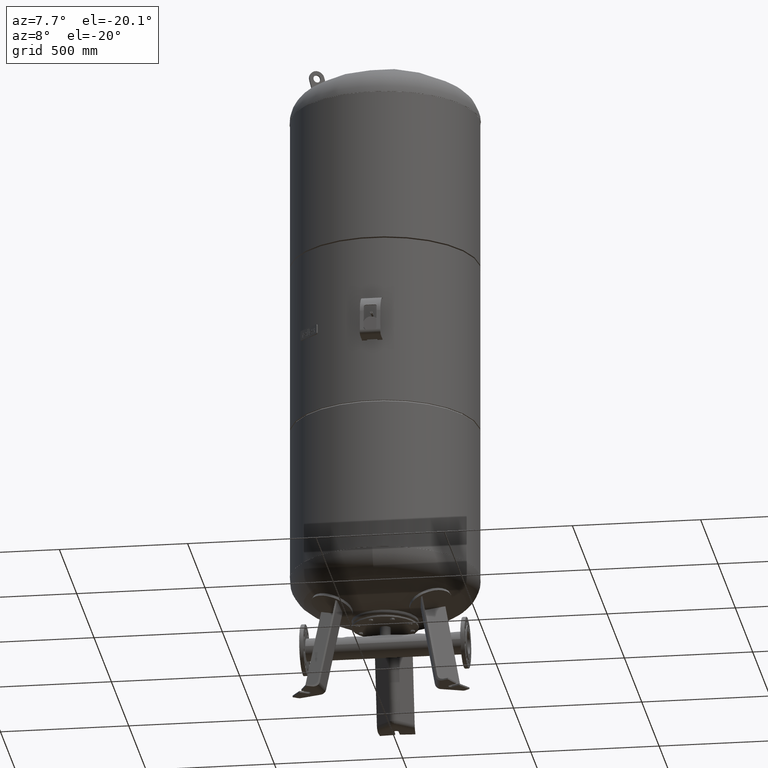
[diagram: clean part render]
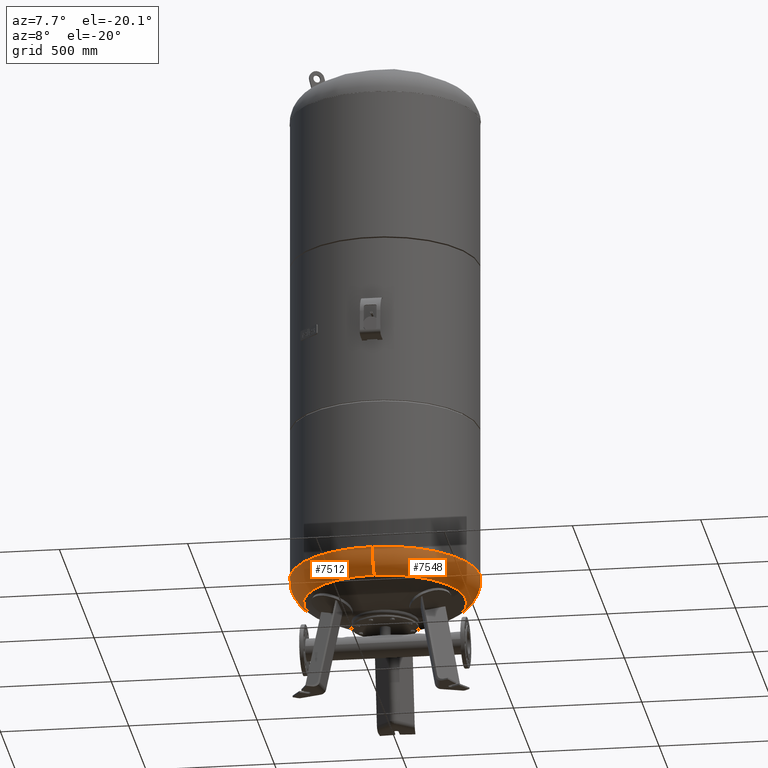
[diagram: same view with one multi-face feature highlighted, each face labeled with its STEP entity id]
A machine part, auxiliary view. The highlighted faces form ONE feature: a constant-radius fillet chain: 2 tangent blend faces with common blend radius 115.5 mm. The faces share edges in the B-rep.
Their STEP definitions:
[1] entity #7512 (Torus):
#7417=CARTESIAN_POINT('',(-370.0,-3.468087E-014,511.793879611869560));
#7418=VERTEX_POINT('',#7417);
#7442=CARTESIAN_POINT('',(-4.531044E-014,369.999999999999940,511.793879611869610));
#7443=VERTEX_POINT('',#7442);
#7451=CARTESIAN_POINT('',(0.0,-3.468087E-014,511.793879611869560));
#7452=DIRECTION('',(0.0,0.0,1.0));
#7453=DIRECTION('',(-1.0,0.0,0.0));
#7454=AXIS2_PLACEMENT_3D('',#7451,#7452,#7453);
#7455=CIRCLE('',#7454,370.0);
#7456=EDGE_CURVE('',#7443,#7418,#7455,.T.);
#7461=CARTESIAN_POINT('',(0.0,-3.468087E-014,511.793879611869560));
#7462=DIRECTION('',(0.0,-1.836970E-016,1.0));
#7463=DIRECTION('',(0.0,-1.0,0.0));
#7464=AXIS2_PLACEMENT_3D('',#7461,#7462,#7463);
#7465=TOROIDAL_SURFACE('',#7464,254.500000000000030,115.500000000000000);
#7466=CARTESIAN_POINT('',(0.0,-370.000000000000060,511.793879611869500));
#7467=VERTEX_POINT('',#7466);
#7468=CARTESIAN_POINT('',(0.0,-315.931034482758610,413.985505725079410));
#7469=VERTEX_POINT('',#7468);
#7470=CARTESIAN_POINT('',(0.0,-254.500000000000060,511.793879611869500));
#7471=DIRECTION('',(1.0,0.0,0.0));
#7472=DIRECTION('',(0.0,-1.0,0.0));
#7473=AXIS2_PLACEMENT_3D('',#7470,#7471,#7472);
#7474=CIRCLE('',#7473,115.500000000000000);
#7475=EDGE_CURVE('',#7467,#7469,#7474,.T.);
#7476=ORIENTED_EDGE('',*,*,#7475,.F.);
#7477=CARTESIAN_POINT('',(0.0,-3.468087E-014,511.793879611869560));
#7478=DIRECTION('',(0.0,0.0,1.0));
#7479=DIRECTION('',(-1.0,0.0,0.0));
#7480=AXIS2_PLACEMENT_3D('',#7477,#7478,#7479);
#7481=CIRCLE('',#7480,370.0);
#7482=EDGE_CURVE('',#7418,#7467,#7481,.T.);
#7483=ORIENTED_EDGE('',*,*,#7482,.F.);
#7484=ORIENTED_EDGE('',*,*,#7456,.F.);
#7485=CARTESIAN_POINT('',(-3.868912E-014,315.931034482758610,413.985505725079630));
#7486=VERTEX_POINT('',#7485);
#7487=CARTESIAN_POINT('',(-3.116623E-014,254.500000000000000,511.793879611869610));
#7488=DIRECTION('',(-1.0,0.0,0.0));
#7489=DIRECTION('',(0.0,1.0,0.0));
#7490=AXIS2_PLACEMENT_3D('',#7487,#7488,#7489);
#7491=CIRCLE('',#7490,115.500000000000000);
#7492=EDGE_CURVE('',#7443,#7486,#7491,.T.);
#7493=ORIENTED_EDGE('',*,*,#7492,.T.);
#7494=CARTESIAN_POINT('',(-315.931034482758610,-1.671377E-014,413.985505725079520));
#7495=VERTEX_POINT('',#7494);
#7496=CARTESIAN_POINT('',(0.0,-1.671377E-014,413.985505725079520));
#7497=DIRECTION('',(0.0,0.0,1.0));
#7498=DIRECTION('',(-1.0,0.0,0.0));
#7499=AXIS2_PLACEMENT_3D('',#7496,#7497,#7498);
#7500=CIRCLE('',#7499,315.931034482758610);
#7501=EDGE_CURVE('',#7486,#7495,#7500,.T.);
#7502=ORIENTED_EDGE('',*,*,#7501,.T.);
#7503=CARTESIAN_POINT('',(0.0,-1.671377E-014,413.985505725079520));
#7504=DIRECTION('',(0.0,0.0,1.0));
#7505=DIRECTION('',(-1.0,0.0,0.0));
#7506=AXIS2_PLACEMENT_3D('',#7503,#7504,#7505);
#7507=CIRCLE('',#7506,315.931034482758610);
#7508=EDGE_CURVE('',#7495,#7469,#7507,.T.);
#7509=ORIENTED_EDGE('',*,*,#7508,.T.);
#7510=EDGE_LOOP('',(#7476,#7483,#7484,#7493,#7502,#7509));
#7511=FACE_OUTER_BOUND('',#7510,.T.);
#7512=ADVANCED_FACE('',(#7511),#7465,.T.);
[2] entity #7548 (Torus):
#7434=CARTESIAN_POINT('',(370.0,1.062956E-014,511.793879611869560));
#7435=VERTEX_POINT('',#7434);
#7442=CARTESIAN_POINT('',(-4.531044E-014,369.999999999999940,511.793879611869610));
#7443=VERTEX_POINT('',#7442);
#7444=CARTESIAN_POINT('',(0.0,-3.468087E-014,511.793879611869560));
#7445=DIRECTION('',(0.0,0.0,1.0));
#7446=DIRECTION('',(-1.0,0.0,0.0));
#7447=AXIS2_PLACEMENT_3D('',#7444,#7445,#7446);
#7448=CIRCLE('',#7447,370.0);
#7449=EDGE_CURVE('',#7435,#7443,#7448,.T.);
#7466=CARTESIAN_POINT('',(0.0,-370.000000000000060,511.793879611869500));
#7467=VERTEX_POINT('',#7466);
#7468=CARTESIAN_POINT('',(0.0,-315.931034482758610,413.985505725079410));
#7469=VERTEX_POINT('',#7468);
#7470=CARTESIAN_POINT('',(0.0,-254.500000000000060,511.793879611869500));
#7471=DIRECTION('',(1.0,0.0,0.0));
#7472=DIRECTION('',(0.0,-1.0,0.0));
#7473=AXIS2_PLACEMENT_3D('',#7470,#7471,#7472);
#7474=CIRCLE('',#7473,115.500000000000000);
#7475=EDGE_CURVE('',#7467,#7469,#7474,.T.);
#7485=CARTESIAN_POINT('',(-3.868912E-014,315.931034482758610,413.985505725079630));
#7486=VERTEX_POINT('',#7485);
#7487=CARTESIAN_POINT('',(-3.116623E-014,254.500000000000000,511.793879611869610));
#7488=DIRECTION('',(-1.0,0.0,0.0));
#7489=DIRECTION('',(0.0,1.0,0.0));
#7490=AXIS2_PLACEMENT_3D('',#7487,#7488,#7489);
#7491=CIRCLE('',#7490,115.500000000000000);
#7492=EDGE_CURVE('',#7443,#7486,#7491,.T.);
#7520=CARTESIAN_POINT('',(0.0,-1.671377E-014,413.985505725079520));
#7521=DIRECTION('',(0.0,0.0,1.0));
#7522=DIRECTION('',(-1.0,0.0,0.0));
#7523=AXIS2_PLACEMENT_3D('',#7520,#7521,#7522);
#7524=CIRCLE('',#7523,315.931034482758610);
#7525=EDGE_CURVE('',#7469,#7486,#7524,.T.);
#7530=CARTESIAN_POINT('',(0.0,-3.468087E-014,511.793879611869560));
#7531=DIRECTION('',(0.0,-1.836970E-016,1.0));
#7532=DIRECTION('',(0.0,-1.0,0.0));
#7533=AXIS2_PLACEMENT_3D('',#7530,#7531,#7532);
#7534=TOROIDAL_SURFACE('',#7533,254.500000000000030,115.500000000000000);
#7535=ORIENTED_EDGE('',*,*,#7475,.T.);
#7536=ORIENTED_EDGE('',*,*,#7525,.T.);
#7537=ORIENTED_EDGE('',*,*,#7492,.F.);
#7538=ORIENTED_EDGE('',*,*,#7449,.F.);
#7539=CARTESIAN_POINT('',(0.0,-3.468087E-014,511.793879611869560));
#7540=DIRECTION('',(0.0,0.0,1.0));
#7541=DIRECTION('',(-1.0,0.0,0.0));
#7542=AXIS2_PLACEMENT_3D('',#7539,#7540,#7541);
#7543=CIRCLE('',#7542,370.0);
#7544=EDGE_CURVE('',#7467,#7435,#7543,.T.);
#7545=ORIENTED_EDGE('',*,*,#7544,.F.);
#7546=EDGE_LOOP('',(#7535,#7536,#7537,#7538,#7545));
#7547=FACE_OUTER_BOUND('',#7546,.T.);
#7548=ADVANCED_FACE('',(#7547),#7534,.T.);